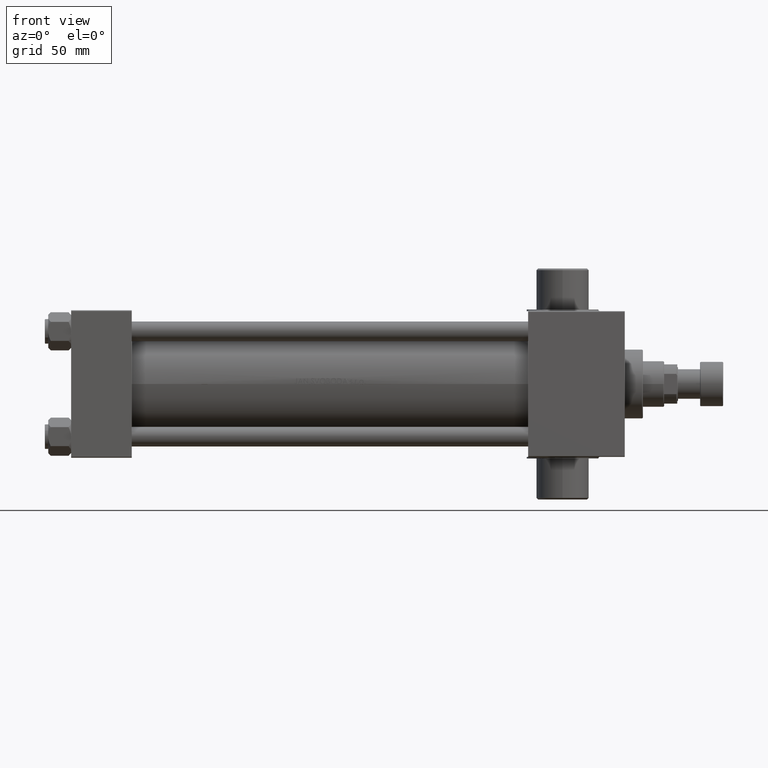
[diagram: clean part render]
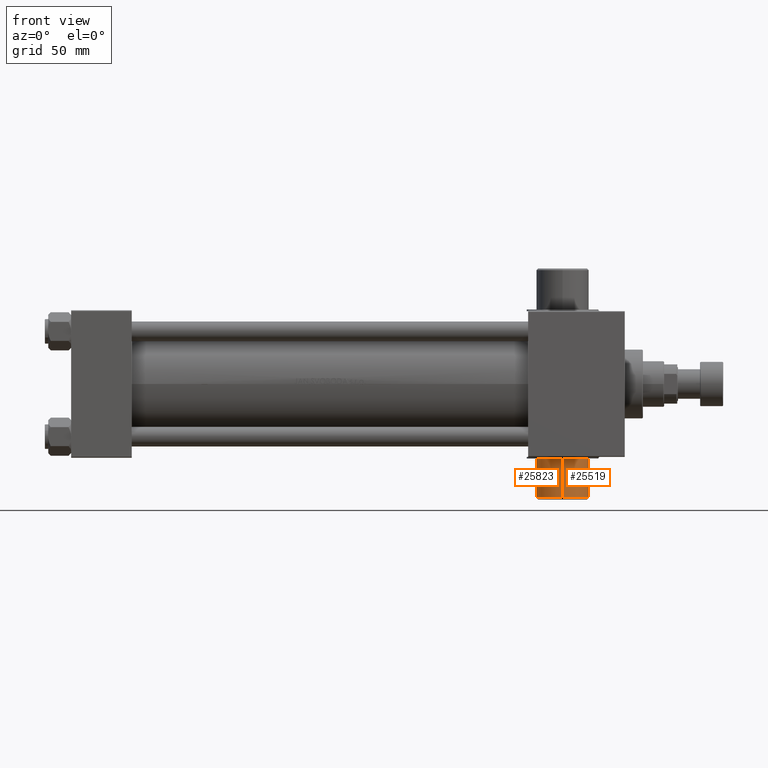
[diagram: same view with one multi-face feature highlighted, each face labeled with its STEP entity id]
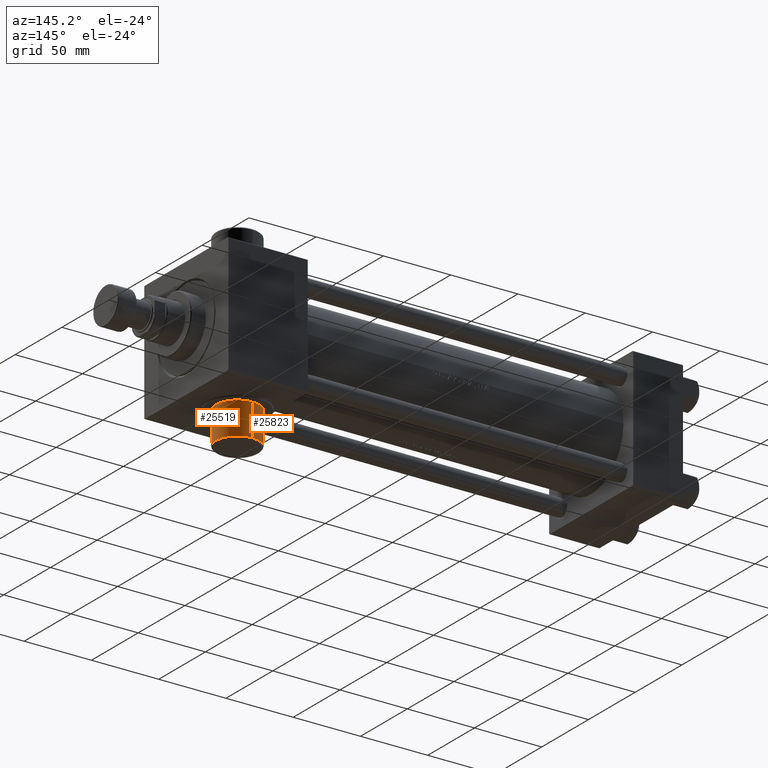
[diagram: same view with one multi-face feature highlighted, each face labeled with its STEP entity id]
A machine part, front view. The highlighted faces form ONE feature: a constant-radius fillet chain: 2 tangent blend faces with common blend radius 16 mm. The faces share edges in the B-rep.
A second angle (auxiliary view) of the same feature is appended — it is thin or edge-on in the first view.
Their STEP definitions:
[1] entity #25823 (Cylinder):
#596 = VECTOR ( 'NONE', #22856, 1000.000000000000000 ) ;
#723 = LINE ( 'NONE', #37368, #596 ) ;
#1209 = EDGE_CURVE ( 'NONE', #7094, #38382, #723, .T. ) ;
#4061 = EDGE_LOOP ( 'NONE', ( #17120, #20516, #10713, #20977 ) ) ;
#4794 = VERTEX_POINT ( 'NONE', #12118 ) ;
#7094 = VERTEX_POINT ( 'NONE', #18040 ) ;
#7385 = DIRECTION ( 'NONE',  ( -0.000000000000000000, -1.000000000000000000, 8.673617379884030542E-17 ) ) ;
#9926 = LINE ( 'NONE', #16593, #15829 ) ;
#10458 = AXIS2_PLACEMENT_3D ( 'NONE', #39768, #7385, #25026 ) ;
#10713 = ORIENTED_EDGE ( 'NONE', *, *, #18882, .T. ) ;
#12118 = CARTESIAN_POINT ( 'NONE',  ( 300.0000000000000000, 45.49999999999999289, -16.00000000000002487 ) ) ;
#13855 = DIRECTION ( 'NONE',  ( -0.000000000000000000, -1.000000000000000000, 8.673617379884036705E-17 ) ) ;
#15337 = CARTESIAN_POINT ( 'NONE',  ( 300.0000000000000000, 45.49999999999999289, 16.00000000000002487 ) ) ;
#15829 = VECTOR ( 'NONE', #46086, 1000.000000000000000 ) ;
#16593 = CARTESIAN_POINT ( 'NONE',  ( 300.0000000000000000, 70.50000000000000000, -16.00000000000002842 ) ) ;
#17120 = ORIENTED_EDGE ( 'NONE', *, *, #1209, .F. ) ;
#18040 = CARTESIAN_POINT ( 'NONE',  ( 300.0000000000000000, 69.49999999999987210, 16.00000000000002132 ) ) ;
#18163 = AXIS2_PLACEMENT_3D ( 'NONE', #29086, #37386, #22404 ) ;
#18882 = EDGE_CURVE ( 'NONE', #37891, #4794, #9926, .T. ) ;
#19844 = AXIS2_PLACEMENT_3D ( 'NONE', #38840, #13855, #43102 ) ;
#20516 = ORIENTED_EDGE ( 'NONE', *, *, #42592, .T. ) ;
#20977 = ORIENTED_EDGE ( 'NONE', *, *, #46010, .F. ) ;
#22404 = DIRECTION ( 'NONE',  ( 0.000000000000000000, 0.000000000000000000, -1.000000000000000000 ) ) ;
#22856 = DIRECTION ( 'NONE',  ( -0.000000000000000000, -1.000000000000000000, 8.673617379884036705E-17 ) ) ;
#25026 = DIRECTION ( 'NONE',  ( 0.000000000000000000, 0.000000000000000000, 1.000000000000000000 ) ) ;
#25823 = ADVANCED_FACE ( 'NONE', ( #35047 ), #31238, .T. ) ;
#28304 = CARTESIAN_POINT ( 'NONE',  ( 300.0000000000000000, 69.49999999999987210, -16.00000000000002842 ) ) ;
#29086 = CARTESIAN_POINT ( 'NONE',  ( 300.0000000000000000, 45.49999999999999289, -8.673617379884004657E-17 ) ) ;
#30977 = CIRCLE ( 'NONE', #10458, 16.00000000000002487 ) ;
#31238 = CYLINDRICAL_SURFACE ( 'NONE', #19844, 16.00000000000002487 ) ;
#35047 = FACE_OUTER_BOUND ( 'NONE', #4061, .T. ) ;
#37368 = CARTESIAN_POINT ( 'NONE',  ( 300.0000000000000000, 70.50000000000000000, 16.00000000000002132 ) ) ;
#37386 = DIRECTION ( 'NONE',  ( -0.000000000000000000, -1.000000000000000000, 8.673617379884036705E-17 ) ) ;
#37891 = VERTEX_POINT ( 'NONE', #28304 ) ;
#37944 = CIRCLE ( 'NONE', #18163, 16.00000000000002487 ) ;
#38382 = VERTEX_POINT ( 'NONE', #15337 ) ;
#38840 = CARTESIAN_POINT ( 'NONE',  ( 300.0000000000000000, 70.50000000000000000, -2.255140518769849223E-15 ) ) ;
#39768 = CARTESIAN_POINT ( 'NONE',  ( 300.0000000000000000, 69.49999999999987210, -2.168404344970998218E-15 ) ) ;
#42592 = EDGE_CURVE ( 'NONE', #7094, #37891, #30977, .T. ) ;
#43102 = DIRECTION ( 'NONE',  ( 0.000000000000000000, 0.000000000000000000, -1.000000000000000000 ) ) ;
#46010 = EDGE_CURVE ( 'NONE', #38382, #4794, #37944, .T. ) ;
#46086 = DIRECTION ( 'NONE',  ( -0.000000000000000000, -1.000000000000000000, 8.673617379884036705E-17 ) ) ;
[2] entity #25519 (Cylinder):
#596 = VECTOR ( 'NONE', #22856, 1000.000000000000000 ) ;
#723 = LINE ( 'NONE', #37368, #596 ) ;
#1209 = EDGE_CURVE ( 'NONE', #7094, #38382, #723, .T. ) ;
#1335 = CIRCLE ( 'NONE', #37047, 16.00000000000002487 ) ;
#1903 = ORIENTED_EDGE ( 'NONE', *, *, #1209, .T. ) ;
#3985 = CARTESIAN_POINT ( 'NONE',  ( 300.0000000000000000, 69.49999999999987210, -2.168404344970998218E-15 ) ) ;
#4794 = VERTEX_POINT ( 'NONE', #12118 ) ;
#6758 = CYLINDRICAL_SURFACE ( 'NONE', #16071, 16.00000000000002487 ) ;
#7094 = VERTEX_POINT ( 'NONE', #18040 ) ;
#9592 = ORIENTED_EDGE ( 'NONE', *, *, #26952, .F. ) ;
#9926 = LINE ( 'NONE', #16593, #15829 ) ;
#10652 = ORIENTED_EDGE ( 'NONE', *, *, #18882, .F. ) ;
#11796 = CARTESIAN_POINT ( 'NONE',  ( 300.0000000000000000, 45.49999999999999289, -8.673617379884004657E-17 ) ) ;
#12118 = CARTESIAN_POINT ( 'NONE',  ( 300.0000000000000000, 45.49999999999999289, -16.00000000000002487 ) ) ;
#12298 = CIRCLE ( 'NONE', #31317, 16.00000000000002487 ) ;
#12497 = DIRECTION ( 'NONE',  ( -0.000000000000000000, -1.000000000000000000, 8.673617379884036705E-17 ) ) ;
#14474 = DIRECTION ( 'NONE',  ( 0.000000000000000000, 0.000000000000000000, 1.000000000000000000 ) ) ;
#15337 = CARTESIAN_POINT ( 'NONE',  ( 300.0000000000000000, 45.49999999999999289, 16.00000000000002487 ) ) ;
#15829 = VECTOR ( 'NONE', #46086, 1000.000000000000000 ) ;
#16071 = AXIS2_PLACEMENT_3D ( 'NONE', #21036, #28420, #20802 ) ;
#16593 = CARTESIAN_POINT ( 'NONE',  ( 300.0000000000000000, 70.50000000000000000, -16.00000000000002842 ) ) ;
#18040 = CARTESIAN_POINT ( 'NONE',  ( 300.0000000000000000, 69.49999999999987210, 16.00000000000002132 ) ) ;
#18882 = EDGE_CURVE ( 'NONE', #37891, #4794, #9926, .T. ) ;
#20411 = ORIENTED_EDGE ( 'NONE', *, *, #42185, .T. ) ;
#20802 = DIRECTION ( 'NONE',  ( 0.000000000000000000, 0.000000000000000000, -1.000000000000000000 ) ) ;
#21036 = CARTESIAN_POINT ( 'NONE',  ( 300.0000000000000000, 70.50000000000000000, -2.255140518769849223E-15 ) ) ;
#22856 = DIRECTION ( 'NONE',  ( -0.000000000000000000, -1.000000000000000000, 8.673617379884036705E-17 ) ) ;
#24683 = EDGE_LOOP ( 'NONE', ( #20411, #1903, #9592, #10652 ) ) ;
#25519 = ADVANCED_FACE ( 'NONE', ( #46493 ), #6758, .T. ) ;
#26952 = EDGE_CURVE ( 'NONE', #4794, #38382, #12298, .T. ) ;
#28304 = CARTESIAN_POINT ( 'NONE',  ( 300.0000000000000000, 69.49999999999987210, -16.00000000000002842 ) ) ;
#28420 = DIRECTION ( 'NONE',  ( -0.000000000000000000, -1.000000000000000000, 8.673617379884036705E-17 ) ) ;
#29664 = DIRECTION ( 'NONE',  ( 0.000000000000000000, 0.000000000000000000, -1.000000000000000000 ) ) ;
#31317 = AXIS2_PLACEMENT_3D ( 'NONE', #11796, #12497, #29664 ) ;
#37047 = AXIS2_PLACEMENT_3D ( 'NONE', #3985, #47076, #14474 ) ;
#37368 = CARTESIAN_POINT ( 'NONE',  ( 300.0000000000000000, 70.50000000000000000, 16.00000000000002132 ) ) ;
#37891 = VERTEX_POINT ( 'NONE', #28304 ) ;
#38382 = VERTEX_POINT ( 'NONE', #15337 ) ;
#42185 = EDGE_CURVE ( 'NONE', #37891, #7094, #1335, .T. ) ;
#46086 = DIRECTION ( 'NONE',  ( -0.000000000000000000, -1.000000000000000000, 8.673617379884036705E-17 ) ) ;
#46493 = FACE_OUTER_BOUND ( 'NONE', #24683, .T. ) ;
#47076 = DIRECTION ( 'NONE',  ( -0.000000000000000000, -1.000000000000000000, 8.673617379884030542E-17 ) ) ;